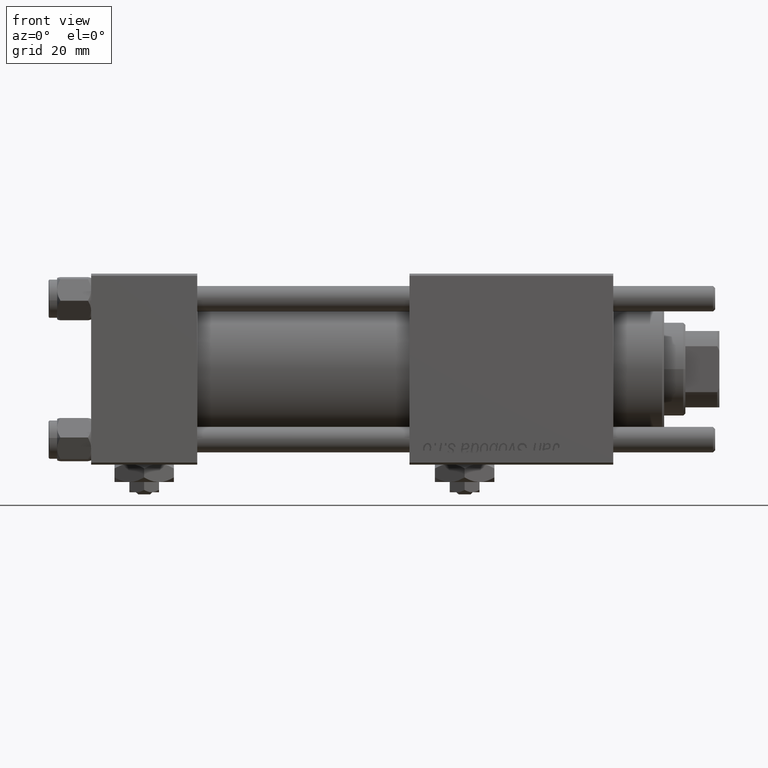
[diagram: clean part render]
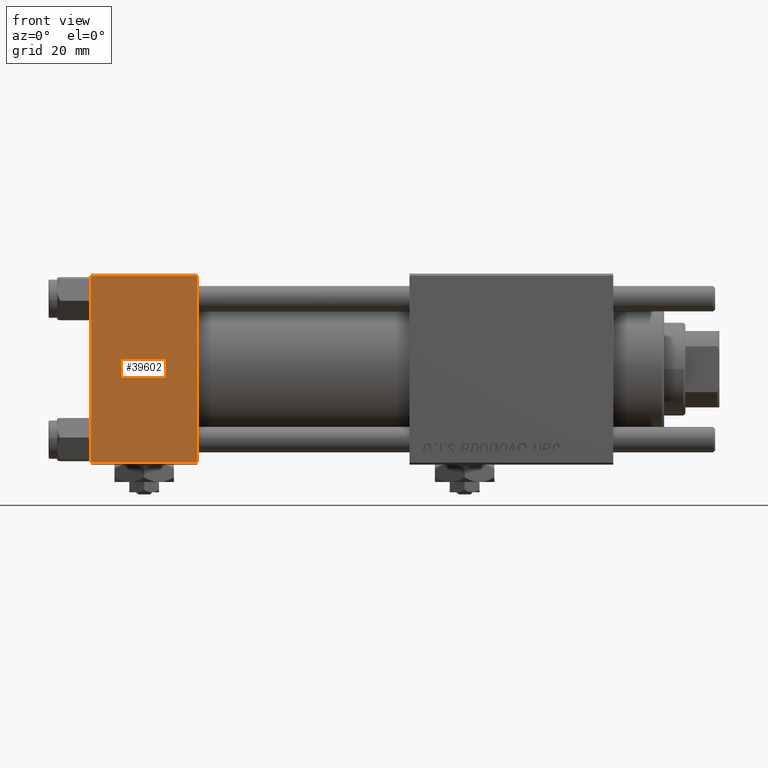
[diagram: same view with one face highlighted and labeled with its STEP entity id]
A machine part, front view. The second image highlights one B-rep face of the part: STEP entity #39602.
In plain terms, the highlighted planar face has unit normal (0, 1, 0).
Its self-contained STEP definition (entity closure, byte-faithful):
#1397 = VECTOR ( 'NONE', #4981, 1000.000000000000000 ) ;
#2757 = VECTOR ( 'NONE', #53993, 1000.000000000000000 ) ;
#4638 = DIRECTION ( 'NONE',  ( 0.000000000000000000, -0.000000000000000000, 1.000000000000000000 ) ) ;
#4981 = DIRECTION ( 'NONE',  ( 0.000000000000000000, 0.000000000000000000, -1.000000000000000000 ) ) ;
#9099 = PLANE ( 'NONE',  #47012 ) ;
#9455 = EDGE_CURVE ( 'NONE', #34660, #16873, #35312, .T. ) ;
#9912 = CARTESIAN_POINT ( 'NONE',  ( 25.00000000000000000, -22.50000000000000000, 22.00000000000000000 ) ) ;
#10253 = VECTOR ( 'NONE', #26381, 1000.000000000000000 ) ;
#11251 = EDGE_CURVE ( 'NONE', #58746, #14668, #31074, .T. ) ;
#14668 = VERTEX_POINT ( 'NONE', #25354 ) ;
#16873 = VERTEX_POINT ( 'NONE', #43999 ) ;
#18345 = CARTESIAN_POINT ( 'NONE',  ( 25.00000000000000000, -22.50000000000000000, 22.00000000000000000 ) ) ;
#18648 = VECTOR ( 'NONE', #48973, 1000.000000000000000 ) ;
#25354 = CARTESIAN_POINT ( 'NONE',  ( 25.00000000000000000, -22.50000000000000000, -21.99999999999997158 ) ) ;
#26381 = DIRECTION ( 'NONE',  ( -1.000000000000000000, 0.000000000000000000, 0.000000000000000000 ) ) ;
#27227 = DIRECTION ( 'NONE',  ( -0.000000000000000000, 1.000000000000000000, 0.000000000000000000 ) ) ;
#31074 = LINE ( 'NONE', #57864, #2757 ) ;
#31688 = FACE_OUTER_BOUND ( 'NONE', #52605, .T. ) ;
#32620 = LINE ( 'NONE', #45443, #1397 ) ;
#34660 = VERTEX_POINT ( 'NONE', #9912 ) ;
#35312 = LINE ( 'NONE', #18345, #10253 ) ;
#36443 = CARTESIAN_POINT ( 'NONE',  ( 25.00000000000000000, -22.50000000000000000, 22.50000000000000000 ) ) ;
#36843 = ORIENTED_EDGE ( 'NONE', *, *, #51432, .F. ) ;
#38403 = EDGE_CURVE ( 'NONE', #16873, #58746, #32620, .T. ) ;
#39602 = ADVANCED_FACE ( 'NONE', ( #31688 ), #9099, .F. ) ;
#41437 = ORIENTED_EDGE ( 'NONE', *, *, #9455, .T. ) ;
#43702 = CARTESIAN_POINT ( 'NONE',  ( 0.000000000000000000, -22.50000000000000000, -21.99999999999997158 ) ) ;
#43999 = CARTESIAN_POINT ( 'NONE',  ( 0.000000000000000000, -22.50000000000000000, 22.00000000000000000 ) ) ;
#45443 = CARTESIAN_POINT ( 'NONE',  ( 0.000000000000000000, -22.50000000000000000, 22.50000000000000000 ) ) ;
#47012 = AXIS2_PLACEMENT_3D ( 'NONE', #36443, #27227, #4638 ) ;
#48973 = DIRECTION ( 'NONE',  ( 0.000000000000000000, 0.000000000000000000, -1.000000000000000000 ) ) ;
#51432 = EDGE_CURVE ( 'NONE', #34660, #14668, #52558, .T. ) ;
#52558 = LINE ( 'NONE', #57893, #18648 ) ;
#52605 = EDGE_LOOP ( 'NONE', ( #57298, #55613, #36843, #41437 ) ) ;
#53993 = DIRECTION ( 'NONE',  ( 1.000000000000000000, 0.000000000000000000, 0.000000000000000000 ) ) ;
#55613 = ORIENTED_EDGE ( 'NONE', *, *, #11251, .T. ) ;
#57298 = ORIENTED_EDGE ( 'NONE', *, *, #38403, .T. ) ;
#57864 = CARTESIAN_POINT ( 'NONE',  ( 25.00000000000000000, -22.50000000000000000, -21.99999999999998579 ) ) ;
#57893 = CARTESIAN_POINT ( 'NONE',  ( 25.00000000000000000, -22.50000000000000000, 22.50000000000000000 ) ) ;
#58746 = VERTEX_POINT ( 'NONE', #43702 ) ;